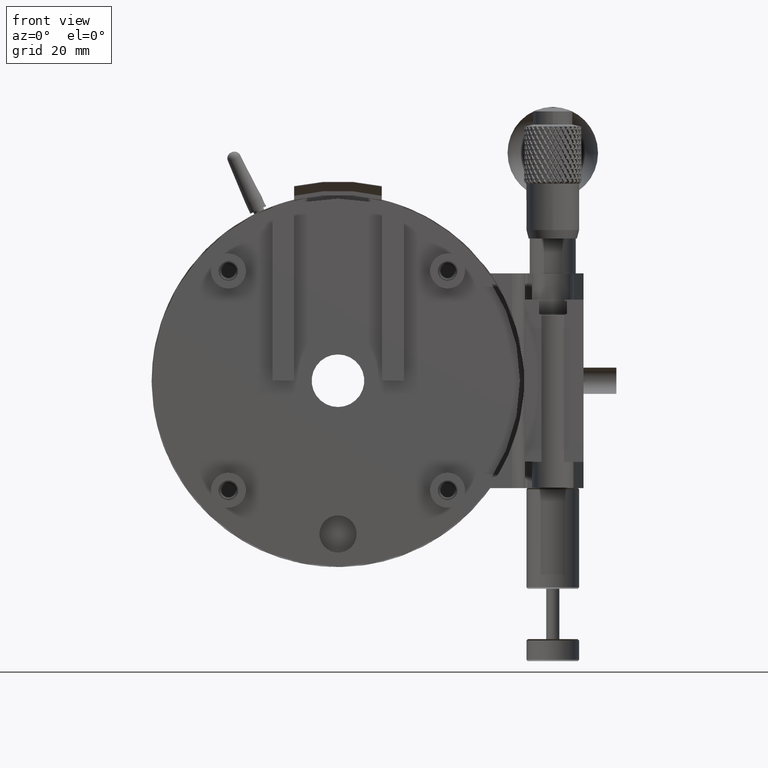
[diagram: clean part render]
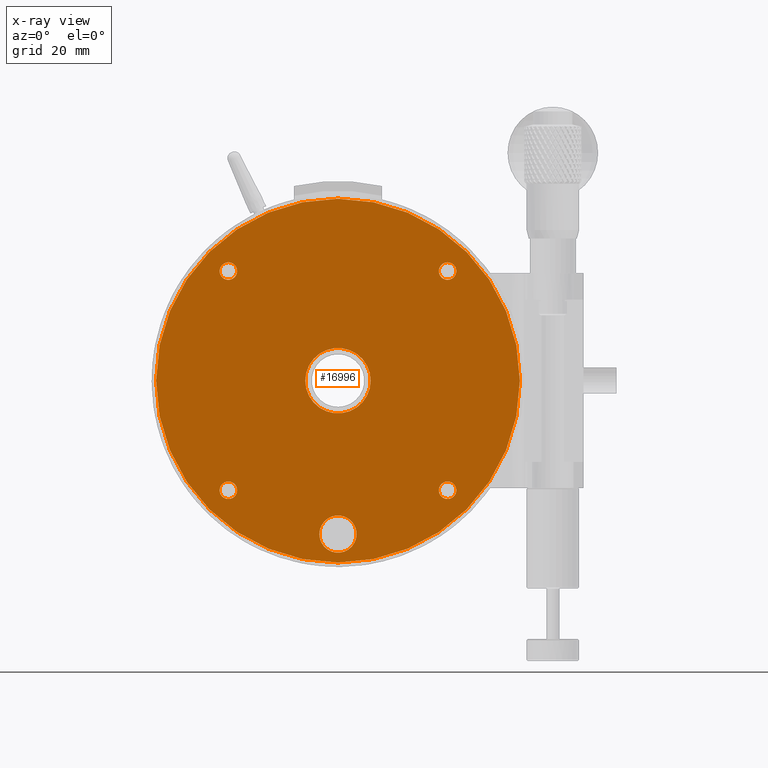
[diagram: x-ray — body ghosted, one internal face saturated and labeled with its STEP entity id]
A machine part, front view, then the same camera in x-ray: the body is ghosted and one INTERNAL B-rep face — a face not visible from any outside direction — is saturated and labeled: STEP entity #16996.
In plain terms, the highlighted planar face has unit normal (0, -1, -0).
Its self-contained STEP definition (entity closure, byte-faithful):
#1024 = EDGE_CURVE ( 'NONE', #26160, #26160, #76833, .T. ) ;
#1268 = CARTESIAN_POINT ( 'NONE',  ( 25.00000000000000000, 12.99999999997680611, -27.00000000003229061 ) ) ;
#1300 = DIRECTION ( 'NONE',  ( -0.000000000000000000, 1.000000000000000000, -0.000000000000000000 ) ) ;
#1435 = FACE_BOUND ( 'NONE', #5180, .T. ) ;
#1455 = EDGE_CURVE ( 'NONE', #19822, #19822, #9564, .T. ) ;
#3485 = PLANE ( 'NONE',  #79699 ) ;
#4216 = AXIS2_PLACEMENT_3D ( 'NONE', #67051, #54012, #28392 ) ;
#5180 = EDGE_LOOP ( 'NONE', ( #47984 ) ) ;
#8527 = CARTESIAN_POINT ( 'NONE',  ( 0.000000000000000000, 13.00000000000000178, 0.000000000000000000 ) ) ;
#8843 = AXIS2_PLACEMENT_3D ( 'NONE', #9104, #47783, #54119 ) ;
#8988 = FACE_BOUND ( 'NONE', #28847, .T. ) ;
#9104 = CARTESIAN_POINT ( 'NONE',  ( 25.00000000000000000, 12.99999999997680789, 25.00000000000000000 ) ) ;
#9564 = CIRCLE ( 'NONE', #4216, 4.250000000000000000 ) ;
#10158 = ORIENTED_EDGE ( 'NONE', *, *, #81167, .T. ) ;
#14376 = DIRECTION ( 'NONE',  ( -1.000000000000000000, 0.000000000000000000, 0.000000000000000000 ) ) ;
#15267 = EDGE_LOOP ( 'NONE', ( #31417 ) ) ;
#16996 = ADVANCED_FACE ( 'NONE', ( #65391, #33464, #1435, #8988, #40579, #34286, #46852 ), #3485, .T. ) ;
#18856 = EDGE_LOOP ( 'NONE', ( #50896 ) ) ;
#19822 = VERTEX_POINT ( 'NONE', #44632 ) ;
#20876 = CARTESIAN_POINT ( 'NONE',  ( -7.458499999999999908, 13.00000000000000178, 0.000000000000000000 ) ) ;
#21592 = DIRECTION ( 'NONE',  ( -1.000000000000000000, 0.000000000000000000, 0.000000000000000000 ) ) ;
#24854 = CIRCLE ( 'NONE', #50331, 1.999999999929967576 ) ;
#25309 = CARTESIAN_POINT ( 'NONE',  ( -41.50000000000000000, 13.00000000000000178, 0.000000000000000000 ) ) ;
#26160 = VERTEX_POINT ( 'NONE', #25309 ) ;
#27591 = AXIS2_PLACEMENT_3D ( 'NONE', #69016, #37054, #82112 ) ;
#27921 = CIRCLE ( 'NONE', #56094, 1.999999999929967576 ) ;
#28392 = DIRECTION ( 'NONE',  ( -1.000000000000000000, 0.000000000000000000, 0.000000000000000000 ) ) ;
#28847 = EDGE_LOOP ( 'NONE', ( #50949 ) ) ;
#31417 = ORIENTED_EDGE ( 'NONE', *, *, #35236, .T. ) ;
#31779 = EDGE_CURVE ( 'NONE', #46695, #46695, #70648, .T. ) ;
#33296 = VERTEX_POINT ( 'NONE', #1268 ) ;
#33464 = FACE_BOUND ( 'NONE', #15267, .T. ) ;
#33751 = CARTESIAN_POINT ( 'NONE',  ( -25.00000000000000000, 13.00000000003365130, -25.00000000000000000 ) ) ;
#34008 = EDGE_CURVE ( 'NONE', #73219, #73219, #24854, .T. ) ;
#34286 = FACE_BOUND ( 'NONE', #48083, .T. ) ;
#35236 = EDGE_CURVE ( 'NONE', #33296, #33296, #63799, .T. ) ;
#37054 = DIRECTION ( 'NONE',  ( -0.000000000000000000, 1.000000000000000000, -4.336808689995262396E-16 ) ) ;
#40449 = DIRECTION ( 'NONE',  ( -0.000000000000000000, 1.000000000000000000, -0.000000000000000000 ) ) ;
#40526 = DIRECTION ( 'NONE',  ( -0.000000000000000000, 1.000000000000000000, -0.000000000000000000 ) ) ;
#40579 = FACE_BOUND ( 'NONE', #74762, .T. ) ;
#40642 = AXIS2_PLACEMENT_3D ( 'NONE', #8527, #40526, #21592 ) ;
#41025 = EDGE_CURVE ( 'NONE', #78718, #78718, #27921, .T. ) ;
#43459 = ORIENTED_EDGE ( 'NONE', *, *, #41025, .T. ) ;
#44632 = CARTESIAN_POINT ( 'NONE',  ( -4.250000000000000000, 13.00000000000000178, -35.00000000000000000 ) ) ;
#45853 = AXIS2_PLACEMENT_3D ( 'NONE', #69752, #83245, #77754 ) ;
#46695 = VERTEX_POINT ( 'NONE', #78300 ) ;
#46852 = FACE_OUTER_BOUND ( 'NONE', #18856, .T. ) ;
#47783 = DIRECTION ( 'NONE',  ( -0.000000000000000000, 1.000000000000000000, -4.336808689995262396E-16 ) ) ;
#47984 = ORIENTED_EDGE ( 'NONE', *, *, #34008, .T. ) ;
#48063 = CARTESIAN_POINT ( 'NONE',  ( -7.458499999999999908, 13.00000000000000178, 0.000000000000000000 ) ) ;
#48083 = EDGE_LOOP ( 'NONE', ( #65437 ) ) ;
#48738 = CARTESIAN_POINT ( 'NONE',  ( -26.99999999992996891, 13.00000000003365130, -25.00000000000000000 ) ) ;
#50331 = AXIS2_PLACEMENT_3D ( 'NONE', #80397, #40449, #72427 ) ;
#50896 = ORIENTED_EDGE ( 'NONE', *, *, #1024, .T. ) ;
#50949 = ORIENTED_EDGE ( 'NONE', *, *, #31779, .T. ) ;
#54012 = DIRECTION ( 'NONE',  ( -0.000000000000000000, 1.000000000000000000, -0.000000000000000000 ) ) ;
#54119 = DIRECTION ( 'NONE',  ( 0.000000000000000000, -8.673617379744006745E-16, -1.000000000000000000 ) ) ;
#56094 = AXIS2_PLACEMENT_3D ( 'NONE', #33751, #1300, #14376 ) ;
#60326 = DIRECTION ( 'NONE',  ( -1.000000000000000000, 0.000000000000000000, -0.000000000000000000 ) ) ;
#63799 = CIRCLE ( 'NONE', #27591, 2.000000000032288394 ) ;
#65391 = FACE_BOUND ( 'NONE', #72285, .T. ) ;
#65437 = ORIENTED_EDGE ( 'NONE', *, *, #1455, .T. ) ;
#65441 = VERTEX_POINT ( 'NONE', #20876 ) ;
#66228 = DIRECTION ( 'NONE',  ( 0.000000000000000000, -1.000000000000000000, -0.000000000000000000 ) ) ;
#66888 = CARTESIAN_POINT ( 'NONE',  ( -26.99999999992996891, 13.00000000003365130, 25.00000000000000000 ) ) ;
#67051 = CARTESIAN_POINT ( 'NONE',  ( 0.000000000000000000, 13.00000000000000178, -35.00000000000000000 ) ) ;
#67504 = CIRCLE ( 'NONE', #40642, 7.458499999999999908 ) ;
#69016 = CARTESIAN_POINT ( 'NONE',  ( 25.00000000000000000, 12.99999999997680789, -25.00000000000000000 ) ) ;
#69752 = CARTESIAN_POINT ( 'NONE',  ( 0.000000000000000000, 13.00000000000000178, 0.000000000000000000 ) ) ;
#70648 = CIRCLE ( 'NONE', #8843, 2.000000000032288394 ) ;
#72285 = EDGE_LOOP ( 'NONE', ( #10158 ) ) ;
#72427 = DIRECTION ( 'NONE',  ( -1.000000000000000000, 0.000000000000000000, 0.000000000000000000 ) ) ;
#73219 = VERTEX_POINT ( 'NONE', #66888 ) ;
#74762 = EDGE_LOOP ( 'NONE', ( #43459 ) ) ;
#76833 = CIRCLE ( 'NONE', #45853, 41.50000000000000000 ) ;
#77754 = DIRECTION ( 'NONE',  ( -1.000000000000000000, 0.000000000000000000, 0.000000000000000000 ) ) ;
#78300 = CARTESIAN_POINT ( 'NONE',  ( 25.00000000000000000, 12.99999999997680611, 22.99999999996771294 ) ) ;
#78718 = VERTEX_POINT ( 'NONE', #48738 ) ;
#79699 = AXIS2_PLACEMENT_3D ( 'NONE', #48063, #66228, #60326 ) ;
#80397 = CARTESIAN_POINT ( 'NONE',  ( -25.00000000000000000, 13.00000000003365130, 25.00000000000000000 ) ) ;
#81167 = EDGE_CURVE ( 'NONE', #65441, #65441, #67504, .T. ) ;
#82112 = DIRECTION ( 'NONE',  ( 0.000000000000000000, -8.673617379744006745E-16, -1.000000000000000000 ) ) ;
#83245 = DIRECTION ( 'NONE',  ( 0.000000000000000000, -1.000000000000000000, 0.000000000000000000 ) ) ;